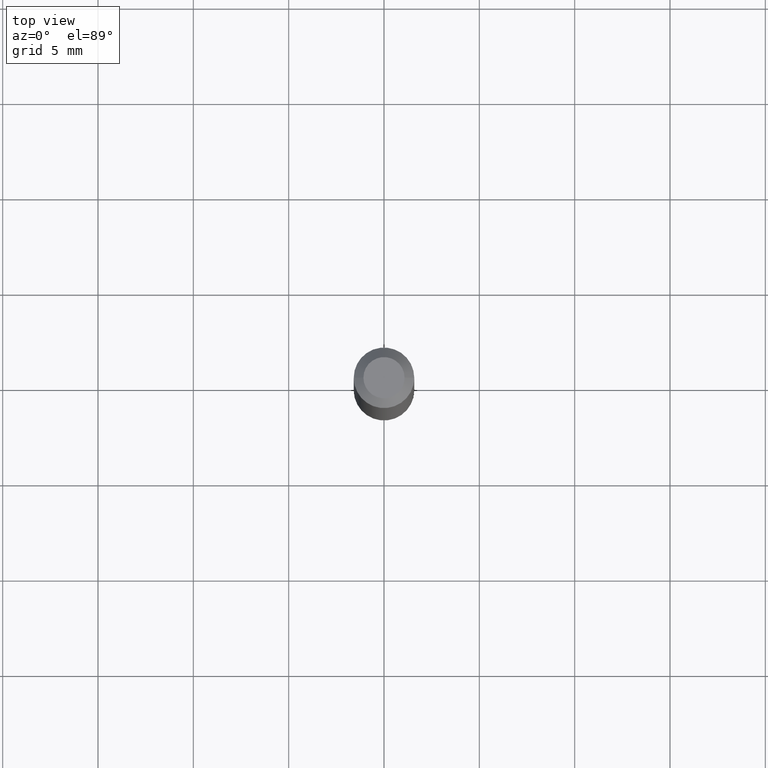
[diagram: clean part render]
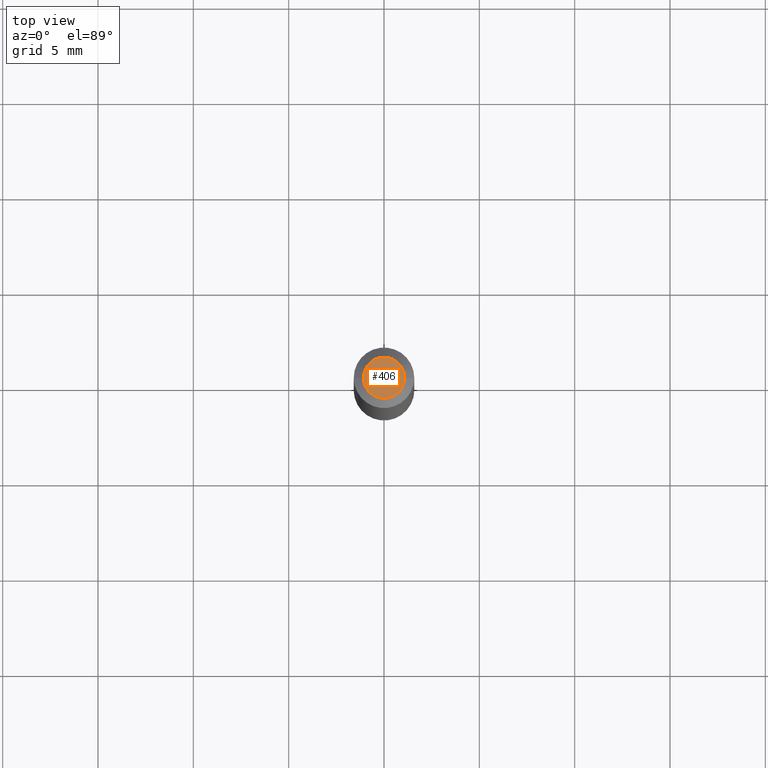
[diagram: same view with one face highlighted and labeled with its STEP entity id]
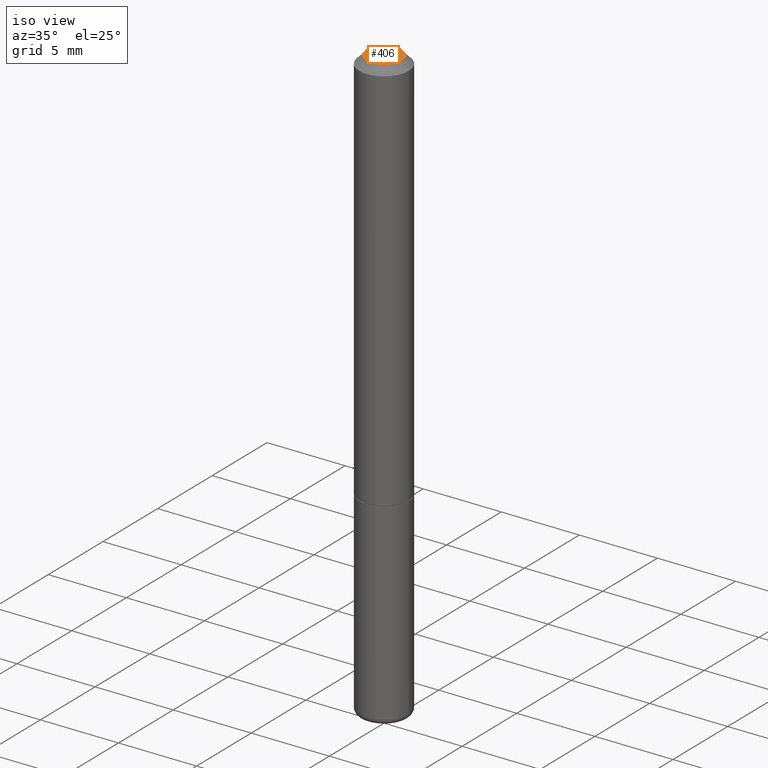
[diagram: same view with one face highlighted and labeled with its STEP entity id]
A machine part, top view. The second image highlights one B-rep face of the part: STEP entity #406.
A second angle (iso view) of the same face is appended — the face is thin or edge-on in the first view.
In plain terms, the highlighted planar face has unit normal (0, -0, -1).
Its self-contained STEP definition (entity closure, byte-faithful):
#21 = DIRECTION ( 'NONE',  ( -2.445468806185136597E-29, 3.491481338843145583E-15, 1.000000000000000000 ) ) ;
#48 = AXIS2_PLACEMENT_3D ( 'NONE', #369, #71, #104 ) ;
#50 = DIRECTION ( 'NONE',  ( 1.000000000000000000, -6.982962677686267499E-15, 4.870577812114089772E-29 ) ) ;
#71 = DIRECTION ( 'NONE',  ( 2.438088387897960049E-29, -3.491481338843145188E-15, -1.000000000000000000 ) ) ;
#78 = ORIENTED_EDGE ( 'NONE', *, *, #150, .T. ) ;
#87 = EDGE_CURVE ( 'NONE', #313, #350, #240, .T. ) ;
#104 = DIRECTION ( 'NONE',  ( -1.000000000000000000, 6.982962677686265922E-15, -4.876176775795935793E-29 ) ) ;
#150 = EDGE_CURVE ( 'NONE', #350, #313, #316, .T. ) ;
#169 = PLANE ( 'NONE',  #48 ) ;
#226 = AXIS2_PLACEMENT_3D ( 'NONE', #324, #321, #50 ) ;
#237 = CARTESIAN_POINT ( 'NONE',  ( -0.04249999999999995448, 3.316907271900966728E-16, -5.549066237130754373E-17 ) ) ;
#240 = CIRCLE ( 'NONE', #226, 0.04249999999999995448 ) ;
#274 = ORIENTED_EDGE ( 'NONE', *, *, #87, .T. ) ;
#294 = DIRECTION ( 'NONE',  ( 1.000000000000000000, -6.982962677686267499E-15, 4.870577812114089772E-29 ) ) ;
#300 = FACE_OUTER_BOUND ( 'NONE', #370, .T. ) ;
#313 = VERTEX_POINT ( 'NONE', #237 ) ;
#316 = CIRCLE ( 'NONE', #419, 0.04249999999999995448 ) ;
#321 = DIRECTION ( 'NONE',  ( -2.445468806185136597E-29, 3.491481338843145583E-15, 1.000000000000000000 ) ) ;
#324 = CARTESIAN_POINT ( 'NONE',  ( 1.357006838635785746E-45, -1.937446121494581442E-31, -5.549066237130534971E-17 ) ) ;
#331 = CARTESIAN_POINT ( 'NONE',  ( 1.357006838635785746E-45, -1.937446121494581442E-31, -5.549066237130534971E-17 ) ) ;
#345 = CARTESIAN_POINT ( 'NONE',  ( 0.04249999999999995448, -3.950909582714361036E-16, -5.549066237130292766E-17 ) ) ;
#350 = VERTEX_POINT ( 'NONE', #345 ) ;
#369 = CARTESIAN_POINT ( 'NONE',  ( 2.967759138016660098E-16, 0.04249999999999995448, -1.761332880864862221E-16 ) ) ;
#370 = EDGE_LOOP ( 'NONE', ( #274, #78 ) ) ;
#406 = ADVANCED_FACE ( 'NONE', ( #300 ), #169, .F. ) ;
#419 = AXIS2_PLACEMENT_3D ( 'NONE', #331, #21, #294 ) ;